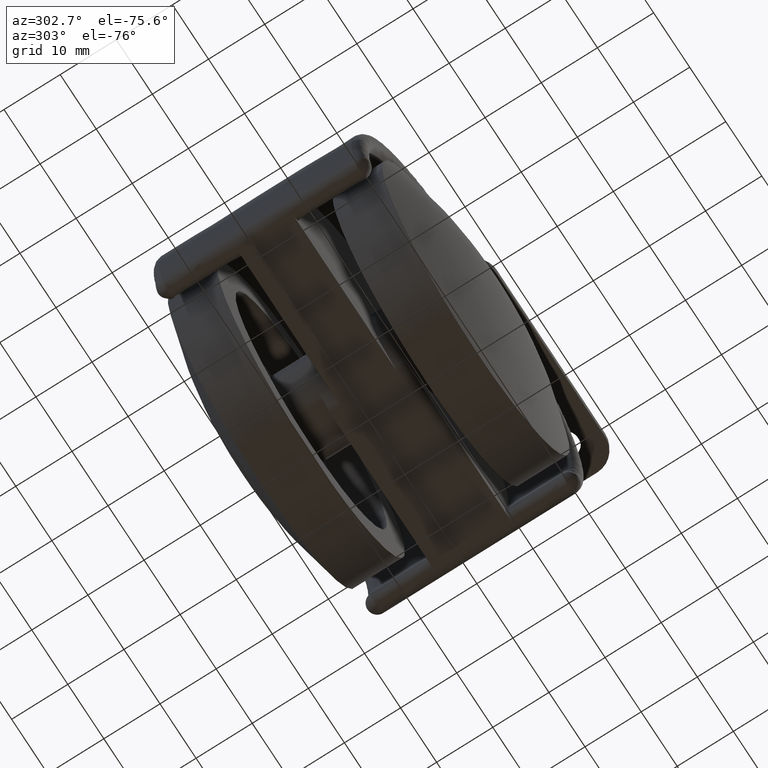
[diagram: clean part render]
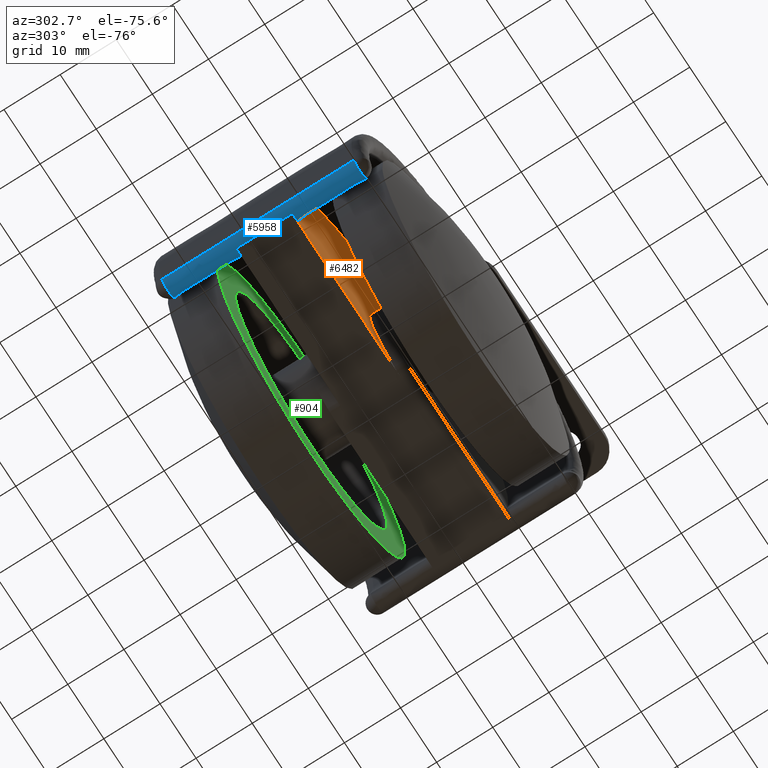
[diagram: same view with three faces highlighted in distinct colors, each labeled with its STEP entity id]
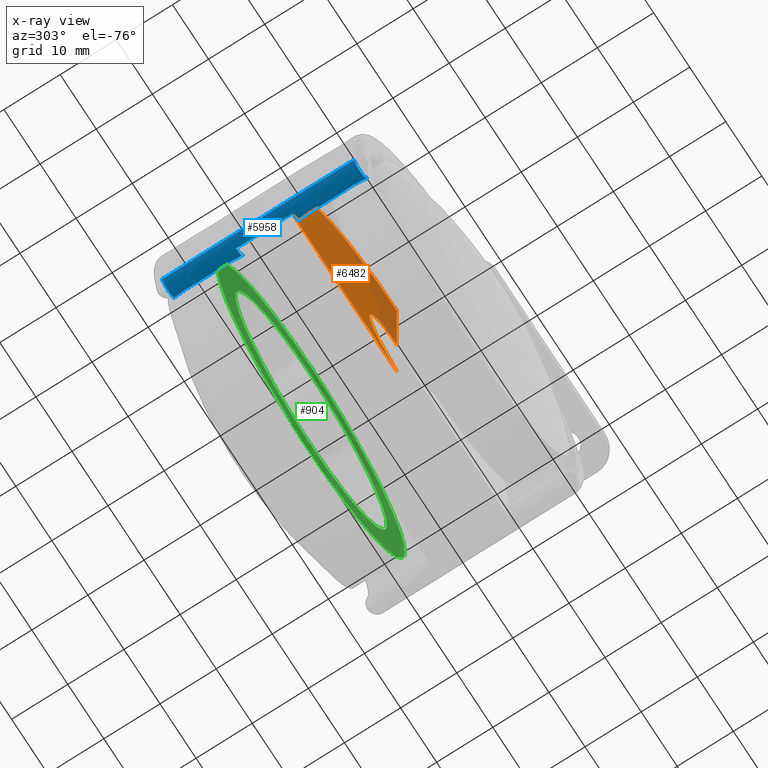
[diagram: x-ray of the same camera — body ghosted, the three highlighted faces saturated]
A machine part, auxiliary view with three faces highlighted in distinct colors.
The next image is the same camera in x-ray (body ghosted, the three faces saturated) — at least one of them is partly hidden behind the body in this view.
Their STEP definitions:

[orange] entity #6482 — the highlighted face is a freeform B-spline surface patch.
#5896=CARTESIAN_POINT('',(-27.269766013083149,-5.0,-6.352941176470590));
#5897=VERTEX_POINT('',#5896);
#5934=CARTESIAN_POINT('',(-28.974126388900849,-5.0,-8.500000000000000));
#5935=VERTEX_POINT('',#5934);
#5941=CARTESIAN_POINT('',(-27.269766013083149,-5.0,-6.352941176470590));
#5942=CARTESIAN_POINT('',(-27.078003873996050,-5.0,-7.176073095658111));
#5943=CARTESIAN_POINT('',(-27.603478195312050,-5.0,-7.838036547829054));
#5944=CARTESIAN_POINT('',(-28.128952516628054,-5.0,-8.500000000000000));
#5945=CARTESIAN_POINT('',(-28.974126388900849,-5.0,-8.500000000000000));
#5953=(BOUNDED_CURVE()B_SPLINE_CURVE(2,(#5941,#5942,#5943,#5944,#5945),.UNSPECIFIED.,.F.,.U.)B_SPLINE_CURVE_WITH_KNOTS((3,2,3),(0.0,0.500000000000000,1.0),.UNSPECIFIED.)CURVE()GEOMETRIC_REPRESENTATION_ITEM()RATIONAL_B_SPLINE_CURVE((1.0,0.900481862723517,1.0,0.900481862723517,1.0))REPRESENTATION_ITEM(''));
#5954=EDGE_CURVE('',#5897,#5935,#5953,.T.);
#6322=CARTESIAN_POINT('',(0.0,-5.0,28.0));
#6323=VERTEX_POINT('',#6322);
#6329=CARTESIAN_POINT('',(0.0,-5.0,7.500000000000000));
#6330=VERTEX_POINT('',#6329);
#6331=CARTESIAN_POINT('',(0.0,-5.0,7.500000000000000));
#6332=CARTESIAN_POINT('',(0.0,-5.0,28.0));
#6333=QUASI_UNIFORM_CURVE('',1,(#6331,#6332),.UNSPECIFIED.,.F.,.U.);
#6334=EDGE_CURVE('',#6330,#6323,#6333,.T.);
#6359=CARTESIAN_POINT('',(-0.661764705882354,-5.0,-8.147058823529410));
#6360=VERTEX_POINT('',#6359);
#6366=CARTESIAN_POINT('',(0.750000000000000,-5.0,-8.500000000000000));
#6367=VERTEX_POINT('',#6366);
#6368=CARTESIAN_POINT('',(-0.661764705882354,-5.0,-8.147058823529410));
#6369=CARTESIAN_POINT('',(-5.421011E-016,-5.0,-8.500000000000000));
#6370=CARTESIAN_POINT('',(0.750000000000000,-5.0,-8.500000000000000));
#6378=(BOUNDED_CURVE()B_SPLINE_CURVE(2,(#6368,#6369,#6370),.UNSPECIFIED.,.F.,.U.)CURVE()GEOMETRIC_REPRESENTATION_ITEM()QUASI_UNIFORM_CURVE()RATIONAL_B_SPLINE_CURVE((1.0,0.970142500145332,1.0))REPRESENTATION_ITEM(''));
#6379=EDGE_CURVE('',#6360,#6367,#6378,.T.);
#6395=CARTESIAN_POINT('',(-3.529411764705881,-5.0,-6.617647058823529));
#6396=VERTEX_POINT('',#6395);
#6402=CARTESIAN_POINT('',(-0.661764705882354,-5.0,-8.147058823529410));
#6403=CARTESIAN_POINT('',(-3.529411764705881,-5.0,-6.617647058823529));
#6404=QUASI_UNIFORM_CURVE('',1,(#6402,#6403),.UNSPECIFIED.,.F.,.U.);
#6405=EDGE_CURVE('',#6360,#6396,#6404,.T.);
#6431=CARTESIAN_POINT('',(0.0,-5.0,7.500000000000000));
#6432=CARTESIAN_POINT('',(-5.855823048033113,-5.0,7.500000000000001));
#6433=CARTESIAN_POINT('',(-7.276068751089989,-5.0,1.819017187772499));
#6434=CARTESIAN_POINT('',(-8.696314454146867,-5.0,-3.861965624455003));
#6435=CARTESIAN_POINT('',(-3.529411764705885,-5.0,-6.617647058823528));
#6443=(BOUNDED_CURVE()B_SPLINE_CURVE(2,(#6431,#6432,#6433,#6434,#6435),.UNSPECIFIED.,.F.,.U.)B_SPLINE_CURVE_WITH_KNOTS((3,2,3),(0.0,0.500000000000000,1.0),.UNSPECIFIED.)CURVE()GEOMETRIC_REPRESENTATION_ITEM()RATIONAL_B_SPLINE_CURVE((1.0,0.788205438016109,1.0,0.788205438016109,1.0))REPRESENTATION_ITEM(''));
#6444=EDGE_CURVE('',#6330,#6396,#6443,.T.);
#6450=CARTESIAN_POINT('',(-30.458847002472979,-5.0,29.823174929255920));
#6451=CARTESIAN_POINT('',(2.234720879326533,-5.0,29.823174929255920));
#6452=CARTESIAN_POINT('',(-30.458847002472979,-5.0,-10.323175908262209));
#6453=CARTESIAN_POINT('',(2.234720879326533,-5.0,-10.323175908262209));
#6454=B_SPLINE_SURFACE_WITH_KNOTS('',1,1,((#6450,#6452),(#6451,#6453)),.UNSPECIFIED.,.F.,.F.,.U.,(2,2),(2,2),(0.0,32.693567881799517),(0.0,40.146350837518128),.UNSPECIFIED.);
#6455=ORIENTED_EDGE('',*,*,#6379,.F.);
#6456=ORIENTED_EDGE('',*,*,#6405,.T.);
#6457=ORIENTED_EDGE('',*,*,#6444,.F.);
#6458=ORIENTED_EDGE('',*,*,#6334,.T.);
#6459=CARTESIAN_POINT('',(0.0,-5.0,28.0));
#6460=CARTESIAN_POINT('',(-13.522781956364717,-5.0,27.999999999999993));
#6461=CARTESIAN_POINT('',(-21.930371097420771,-5.0,17.408584765264859));
#6462=CARTESIAN_POINT('',(-30.337960238476821,-5.0,6.817169530529719));
#6463=CARTESIAN_POINT('',(-27.269766013083139,-5.0,-6.352941176470587));
#6471=(BOUNDED_CURVE()B_SPLINE_CURVE(2,(#6459,#6460,#6461,#6462,#6463),.UNSPECIFIED.,.F.,.U.)B_SPLINE_CURVE_WITH_KNOTS((3,2,3),(0.0,0.500000000000000,1.0),.UNSPECIFIED.)CURVE()GEOMETRIC_REPRESENTATION_ITEM()RATIONAL_B_SPLINE_CURVE((1.0,0.900481862723517,1.0,0.900481862723517,1.0))REPRESENTATION_ITEM(''));
#6472=EDGE_CURVE('',#6323,#5897,#6471,.T.);
#6473=ORIENTED_EDGE('',*,*,#6472,.T.);
#6474=ORIENTED_EDGE('',*,*,#5954,.T.);
#6475=CARTESIAN_POINT('',(-28.974126388900849,-5.0,-8.500000000000000));
#6476=CARTESIAN_POINT('',(0.750000000000000,-5.0,-8.500000000000000));
#6477=QUASI_UNIFORM_CURVE('',1,(#6475,#6476),.UNSPECIFIED.,.F.,.U.);
#6478=EDGE_CURVE('',#5935,#6367,#6477,.T.);
#6479=ORIENTED_EDGE('',*,*,#6478,.T.);
#6480=EDGE_LOOP('',(#6455,#6456,#6457,#6458,#6473,#6474,#6479));
#6481=FACE_OUTER_BOUND('',#6480,.T.);
#6482=ADVANCED_FACE('',(#6481),#6454,.F.);

[blue] entity #5958 — the highlighted face is a freeform B-spline surface patch.
#5478=CARTESIAN_POINT('',(-27.269766013083149,17.100000000000001,-6.352941176470590));
#5479=VERTEX_POINT('',#5478);
#5497=CARTESIAN_POINT('',(-30.678486764718549,17.100000000000001,-7.147058823529410));
#5498=VERTEX_POINT('',#5497);
#5567=CARTESIAN_POINT('',(-30.678486764718549,17.100000000000001,-7.147058823529409));
#5568=CARTESIAN_POINT('',(-30.281427941189133,17.099999999999998,-8.851419199347106));
#5569=CARTESIAN_POINT('',(-28.577067565371440,17.100000000000001,-8.454360375817698));
#5570=CARTESIAN_POINT('',(-26.872707189553747,17.099999999999998,-8.057301552288289));
#5571=CARTESIAN_POINT('',(-27.269766013083149,17.100000000000001,-6.352941176470591));
#5579=(BOUNDED_CURVE()B_SPLINE_CURVE(2,(#5567,#5568,#5569,#5570,#5571),.UNSPECIFIED.,.F.,.U.)B_SPLINE_CURVE_WITH_KNOTS((3,2,3),(0.0,0.500000000000000,1.0),.UNSPECIFIED.)CURVE()GEOMETRIC_REPRESENTATION_ITEM()RATIONAL_B_SPLINE_CURVE((1.0,0.707106781186547,1.0,0.707106781186547,1.0))REPRESENTATION_ITEM(''));
#5580=EDGE_CURVE('',#5498,#5479,#5579,.T.);
#5617=CARTESIAN_POINT('',(-27.269766013083149,-17.100000000000001,-6.352941176470590));
#5618=VERTEX_POINT('',#5617);
#5619=CARTESIAN_POINT('',(-30.678486764718549,-17.100000000000001,-7.147058823529410));
#5620=VERTEX_POINT('',#5619);
#5636=CARTESIAN_POINT('',(-27.269766013083149,-17.100000000000001,-6.352941176470590));
#5637=CARTESIAN_POINT('',(-27.040523994434324,-17.099999999999998,-7.336954098245069));
#5638=CARTESIAN_POINT('',(-27.778083173018771,-17.100000000000001,-8.027489970897014));
#5639=CARTESIAN_POINT('',(-28.515642351603208,-17.099999999999998,-8.718025843548958));
#5640=CARTESIAN_POINT('',(-29.482443548836471,-17.100000000000001,-8.424548794426423));
#5641=CARTESIAN_POINT('',(-30.449244746069724,-17.099999999999998,-8.131071745303888));
#5642=CARTESIAN_POINT('',(-30.678486764718549,-17.100000000000001,-7.147058823529410));
#5650=(BOUNDED_CURVE()B_SPLINE_CURVE(2,(#5636,#5637,#5638,#5639,#5640,#5641,#5642),.UNSPECIFIED.,.F.,.U.)B_SPLINE_CURVE_WITH_KNOTS((3,2,2,3),(0.0,0.333333333333333,0.666666666666667,1.0),.UNSPECIFIED.)CURVE()GEOMETRIC_REPRESENTATION_ITEM()RATIONAL_B_SPLINE_CURVE((1.0,0.866025403784439,1.0,0.866025403784439,1.0,0.866025403784439,1.0))REPRESENTATION_ITEM(''));
#5651=EDGE_CURVE('',#5618,#5620,#5650,.T.);
#5878=CARTESIAN_POINT('',(-30.688296511283820,-17.955000000000009,-7.102307807931582));
#5879=CARTESIAN_POINT('',(-30.688296511283820,17.976375000000001,-7.102307807931582));
#5880=CARTESIAN_POINT('',(-30.317041545304207,-17.955000000000009,-8.908666214249186));
#5881=CARTESIAN_POINT('',(-30.317041545304207,17.976375000000004,-8.908666214249186));
#5882=CARTESIAN_POINT('',(-28.532588674057731,-17.955000000000009,-8.443382545785536));
#5883=CARTESIAN_POINT('',(-28.532588674057731,17.976375000000001,-8.443382545785536));
#5884=CARTESIAN_POINT('',(-26.748135802811248,-17.955000000000009,-7.978098877321886));
#5885=CARTESIAN_POINT('',(-26.748135802811248,17.976375000000004,-7.978098877321886));
#5886=CARTESIAN_POINT('',(-27.306172863565159,-17.955000000000009,-6.220442602430822));
#5887=CARTESIAN_POINT('',(-27.306172863565159,17.976375000000001,-6.220442602430822));
#5895=(BOUNDED_SURFACE()B_SPLINE_SURFACE(1,2,((#5878,#5880,#5882,#5884,#5886),(#5879,#5881,#5883,#5885,#5887)),.UNSPECIFIED.,.F.,.F.,.U.)B_SPLINE_SURFACE_WITH_KNOTS((2,2),(3,2,3),(0.0,35.931375000000010),(0.0,3.007437341767846,6.014874683535691),.UNSPECIFIED.)GEOMETRIC_REPRESENTATION_ITEM()RATIONAL_B_SPLINE_SURFACE(((1.0,0.688354575693754,1.0,0.688354575693754,1.0),(1.0,0.688354575693754,1.0,0.688354575693754,1.0)))REPRESENTATION_ITEM('')SURFACE());
#5896=CARTESIAN_POINT('',(-27.269766013083149,-5.0,-6.352941176470590));
#5897=VERTEX_POINT('',#5896);
#5898=CARTESIAN_POINT('',(-27.269766013083149,-17.100000000000001,-6.352941176470590));
#5899=CARTESIAN_POINT('',(-27.269766013083149,-5.0,-6.352941176470590));
#5900=QUASI_UNIFORM_CURVE('',1,(#5898,#5899),.UNSPECIFIED.,.F.,.U.);
#5901=EDGE_CURVE('',#5618,#5897,#5900,.T.);
#5902=ORIENTED_EDGE('',*,*,#5901,.F.);
#5903=ORIENTED_EDGE('',*,*,#5651,.T.);
#5904=CARTESIAN_POINT('',(-30.678486764718549,17.100000000000001,-7.147058823529410));
#5905=CARTESIAN_POINT('',(-30.678486764718549,-17.100000000000001,-7.147058823529410));
#5906=QUASI_UNIFORM_CURVE('',1,(#5904,#5905),.UNSPECIFIED.,.F.,.U.);
#5907=EDGE_CURVE('',#5498,#5620,#5906,.T.);
#5908=ORIENTED_EDGE('',*,*,#5907,.F.);
#5909=ORIENTED_EDGE('',*,*,#5580,.T.);
#5910=CARTESIAN_POINT('',(-27.269766013083149,5.0,-6.352941176470590));
#5911=VERTEX_POINT('',#5910);
#5912=CARTESIAN_POINT('',(-27.269766013083149,5.0,-6.352941176470590));
#5913=CARTESIAN_POINT('',(-27.269766013083149,17.100000000000001,-6.352941176470590));
#5914=QUASI_UNIFORM_CURVE('',1,(#5912,#5913),.UNSPECIFIED.,.F.,.U.);
#5915=EDGE_CURVE('',#5911,#5479,#5914,.T.);
#5916=ORIENTED_EDGE('',*,*,#5915,.F.);
#5917=CARTESIAN_POINT('',(-28.974126388900849,5.0,-8.500000000000000));
#5918=VERTEX_POINT('',#5917);
#5919=CARTESIAN_POINT('',(-28.974126388900849,5.0,-8.500000000000000));
#5920=CARTESIAN_POINT('',(-28.128952516628054,5.0,-8.500000000000000));
#5921=CARTESIAN_POINT('',(-27.603478195312050,5.0,-7.838036547829054));
#5922=CARTESIAN_POINT('',(-27.078003873996050,5.0,-7.176073095658109));
#5923=CARTESIAN_POINT('',(-27.269766013083149,5.0,-6.352941176470590));
#5931=(BOUNDED_CURVE()B_SPLINE_CURVE(2,(#5919,#5920,#5921,#5922,#5923),.UNSPECIFIED.,.F.,.U.)B_SPLINE_CURVE_WITH_KNOTS((3,2,3),(0.0,0.500000000000000,1.0),.UNSPECIFIED.)CURVE()GEOMETRIC_REPRESENTATION_ITEM()RATIONAL_B_SPLINE_CURVE((1.0,0.900481862723517,1.0,0.900481862723517,1.0))REPRESENTATION_ITEM(''));
#5932=EDGE_CURVE('',#5918,#5911,#5931,.T.);
#5933=ORIENTED_EDGE('',*,*,#5932,.F.);
#5934=CARTESIAN_POINT('',(-28.974126388900849,-5.0,-8.500000000000000));
#5935=VERTEX_POINT('',#5934);
#5936=CARTESIAN_POINT('',(-28.974126388900849,-5.0,-8.500000000000000));
#5937=CARTESIAN_POINT('',(-28.974126388900849,5.0,-8.500000000000000));
#5938=QUASI_UNIFORM_CURVE('',1,(#5936,#5937),.UNSPECIFIED.,.F.,.U.);
#5939=EDGE_CURVE('',#5935,#5918,#5938,.T.);
#5940=ORIENTED_EDGE('',*,*,#5939,.F.);
#5941=CARTESIAN_POINT('',(-27.269766013083149,-5.0,-6.352941176470590));
#5942=CARTESIAN_POINT('',(-27.078003873996050,-5.0,-7.176073095658111));
#5943=CARTESIAN_POINT('',(-27.603478195312050,-5.0,-7.838036547829054));
#5944=CARTESIAN_POINT('',(-28.128952516628054,-5.0,-8.500000000000000));
#5945=CARTESIAN_POINT('',(-28.974126388900849,-5.0,-8.500000000000000));
#5953=(BOUNDED_CURVE()B_SPLINE_CURVE(2,(#5941,#5942,#5943,#5944,#5945),.UNSPECIFIED.,.F.,.U.)B_SPLINE_CURVE_WITH_KNOTS((3,2,3),(0.0,0.500000000000000,1.0),.UNSPECIFIED.)CURVE()GEOMETRIC_REPRESENTATION_ITEM()RATIONAL_B_SPLINE_CURVE((1.0,0.900481862723517,1.0,0.900481862723517,1.0))REPRESENTATION_ITEM(''));
#5954=EDGE_CURVE('',#5897,#5935,#5953,.T.);
#5955=ORIENTED_EDGE('',*,*,#5954,.F.);
#5956=EDGE_LOOP('',(#5902,#5903,#5908,#5909,#5916,#5933,#5940,#5955));
#5957=FACE_OUTER_BOUND('',#5956,.T.);
#5958=ADVANCED_FACE('',(#5957),#5895,.T.);

[green] entity #904 — the highlighted face is a freeform B-spline surface patch.
#286=CARTESIAN_POINT('',(-25.951505802817628,-10.250000000000000,-1.587244960940237));
#287=VERTEX_POINT('',#286);
#293=CARTESIAN_POINT('',(0.0,-10.250000000000000,-26.0));
#294=VERTEX_POINT('',#293);
#295=CARTESIAN_POINT('',(0.0,-10.250000000000000,-26.0));
#296=CARTESIAN_POINT('',(-24.458373854610496,-10.249999999999998,-26.000000000000007));
#297=CARTESIAN_POINT('',(-25.951505802817632,-10.249999999999998,-1.587244960940237));
#305=(BOUNDED_CURVE()B_SPLINE_CURVE(2,(#295,#296,#297),.UNSPECIFIED.,.F.,.U.)B_SPLINE_CURVE_WITH_KNOTS((3,3),(0.500000000000000,0.739333075717101),.UNSPECIFIED.)CURVE()GEOMETRIC_REPRESENTATION_ITEM()RATIONAL_B_SPLINE_CURVE((1.0,0.719603860338778,0.976072284872133))REPRESENTATION_ITEM(''));
#306=EDGE_CURVE('',#294,#287,#305,.T.);
#308=CARTESIAN_POINT('',(25.818250679703731,-10.250000000000000,3.068864910571040));
#309=VERTEX_POINT('',#308);
#310=CARTESIAN_POINT('',(25.818250679703727,-10.250000000000000,3.068864910571040));
#311=CARTESIAN_POINT('',(26.000000000000004,-10.249999999999998,1.539814382543767));
#312=CARTESIAN_POINT('',(26.0,-10.250000000000000,0.0));
#313=CARTESIAN_POINT('',(26.000000000000007,-10.250000000000000,-26.000000000000007));
#314=CARTESIAN_POINT('',(0.0,-10.250000000000000,-26.0));
#322=(BOUNDED_CURVE()B_SPLINE_CURVE(2,(#310,#311,#312,#313,#314),.UNSPECIFIED.,.F.,.U.)B_SPLINE_CURVE_WITH_KNOTS((3,2,3),(0.229562638409770,0.250000000000000,0.500000000000000),.UNSPECIFIED.)CURVE()GEOMETRIC_REPRESENTATION_ITEM()RATIONAL_B_SPLINE_CURVE((0.956027077387376,0.976056141519133,1.0,0.707106781186547,1.0))REPRESENTATION_ITEM(''));
#323=EDGE_CURVE('',#309,#294,#322,.T.);
#367=CARTESIAN_POINT('',(0.0,-10.250000000000000,26.0));
#368=VERTEX_POINT('',#367);
#369=CARTESIAN_POINT('',(0.0,-10.250000000000000,26.0));
#370=CARTESIAN_POINT('',(23.092560364421743,-10.250000000000000,26.0));
#371=CARTESIAN_POINT('',(25.818250679703727,-10.250000000000000,3.068864910571040));
#379=(BOUNDED_CURVE()B_SPLINE_CURVE(2,(#369,#370,#371),.UNSPECIFIED.,.F.,.U.)B_SPLINE_CURVE_WITH_KNOTS((3,3),(0.0,0.229562638409770),.UNSPECIFIED.)CURVE()GEOMETRIC_REPRESENTATION_ITEM()RATIONAL_B_SPLINE_CURVE((1.0,0.731050639667415,0.956027077387376))REPRESENTATION_ITEM(''));
#380=EDGE_CURVE('',#368,#309,#379,.T.);
#382=CARTESIAN_POINT('',(-25.951505802817632,-10.249999999999998,-1.587244960940237));
#383=CARTESIAN_POINT('',(-26.000000000000004,-10.250000000000004,-0.794363288353669));
#384=CARTESIAN_POINT('',(-26.0,-10.250000000000000,0.0));
#385=CARTESIAN_POINT('',(-26.000000000000007,-10.250000000000000,26.000000000000007));
#386=CARTESIAN_POINT('',(0.0,-10.250000000000000,26.0));
#394=(BOUNDED_CURVE()B_SPLINE_CURVE(2,(#382,#383,#384,#385,#386),.UNSPECIFIED.,.F.,.U.)B_SPLINE_CURVE_WITH_KNOTS((3,2,3),(0.739333075717101,0.750000000000000,1.0),.UNSPECIFIED.)CURVE()GEOMETRIC_REPRESENTATION_ITEM()RATIONAL_B_SPLINE_CURVE((0.976072284872133,0.987502920847769,1.0,0.707106781186547,1.0))REPRESENTATION_ITEM(''));
#395=EDGE_CURVE('',#287,#368,#394,.T.);
#643=CARTESIAN_POINT('',(20.853201422381630,-10.250000000000000,2.478707412633857));
#644=VERTEX_POINT('',#643);
#650=CARTESIAN_POINT('',(0.0,-10.250000000000000,-21.0));
#651=VERTEX_POINT('',#650);
#652=CARTESIAN_POINT('',(20.853201422381634,-10.250000000000000,2.478707412633857));
#653=CARTESIAN_POINT('',(21.000000000000004,-10.250000000000007,1.243700694243165));
#654=CARTESIAN_POINT('',(21.0,-10.250000000000000,0.0));
#655=CARTESIAN_POINT('',(21.000000000000007,-10.250000000000000,-21.000000000000007));
#656=CARTESIAN_POINT('',(0.0,-10.250000000000000,-21.0));
#664=(BOUNDED_CURVE()B_SPLINE_CURVE(2,(#652,#653,#654,#655,#656),.UNSPECIFIED.,.F.,.U.)B_SPLINE_CURVE_WITH_KNOTS((3,2,3),(0.229562566839412,0.250000000000000,0.500000000000000),.UNSPECIFIED.)CURVE()GEOMETRIC_REPRESENTATION_ITEM()RATIONAL_B_SPLINE_CURVE((0.956026937106371,0.976056057669242,1.0,0.707106781186547,1.0))REPRESENTATION_ITEM(''));
#665=EDGE_CURVE('',#644,#651,#664,.T.);
#667=CARTESIAN_POINT('',(-20.960832145505560,-10.250000000000000,-1.281996789165496));
#668=VERTEX_POINT('',#667);
#669=CARTESIAN_POINT('',(0.0,-10.250000000000000,-21.0));
#670=CARTESIAN_POINT('',(-19.754848688870240,-10.250000000000000,-21.000000000000007));
#671=CARTESIAN_POINT('',(-20.960832145505563,-10.249999999999998,-1.281996789165495));
#679=(BOUNDED_CURVE()B_SPLINE_CURVE(2,(#669,#670,#671),.UNSPECIFIED.,.F.,.U.)B_SPLINE_CURVE_WITH_KNOTS((3,3),(0.500000000000000,0.739333147797076),.UNSPECIFIED.)CURVE()GEOMETRIC_REPRESENTATION_ITEM()RATIONAL_B_SPLINE_CURVE((1.0,0.719603775891835,0.976072439353441))REPRESENTATION_ITEM(''));
#680=EDGE_CURVE('',#651,#668,#679,.T.);
#754=CARTESIAN_POINT('',(0.0,-10.250000000000000,21.0));
#755=VERTEX_POINT('',#754);
#756=CARTESIAN_POINT('',(-20.960832145505563,-10.249999999999998,-1.281996789165495));
#757=CARTESIAN_POINT('',(-20.999999999999996,-10.249999999999996,-0.641596727136566));
#758=CARTESIAN_POINT('',(-21.0,-10.250000000000000,0.0));
#759=CARTESIAN_POINT('',(-21.000000000000007,-10.250000000000000,21.000000000000007));
#760=CARTESIAN_POINT('',(0.0,-10.250000000000000,21.0));
#768=(BOUNDED_CURVE()B_SPLINE_CURVE(2,(#756,#757,#758,#759,#760),.UNSPECIFIED.,.F.,.U.)B_SPLINE_CURVE_WITH_KNOTS((3,2,3),(0.739333147797076,0.750000000000000,1.0),.UNSPECIFIED.)CURVE()GEOMETRIC_REPRESENTATION_ITEM()RATIONAL_B_SPLINE_CURVE((0.976072439353441,0.987503005294712,1.0,0.707106781186547,1.0))REPRESENTATION_ITEM(''));
#769=EDGE_CURVE('',#668,#755,#768,.T.);
#771=CARTESIAN_POINT('',(0.0,-10.250000000000000,21.0));
#772=CARTESIAN_POINT('',(18.651675416953815,-10.250000000000000,21.000000000000004));
#773=CARTESIAN_POINT('',(20.853201422381634,-10.250000000000000,2.478707412633857));
#781=(BOUNDED_CURVE()B_SPLINE_CURVE(2,(#771,#772,#773),.UNSPECIFIED.,.F.,.U.)B_SPLINE_CURVE_WITH_KNOTS((3,3),(0.0,0.229562566839412),.UNSPECIFIED.)CURVE()GEOMETRIC_REPRESENTATION_ITEM()RATIONAL_B_SPLINE_CURVE((1.0,0.731050723517305,0.956026937106371))REPRESENTATION_ITEM(''));
#782=EDGE_CURVE('',#755,#644,#781,.T.);
#887=CARTESIAN_POINT('',(-28.596768058601580,-10.250000000000000,28.597399899213912));
#888=CARTESIAN_POINT('',(-28.596768058601580,-10.250000000000000,-28.597401293962601));
#889=CARTESIAN_POINT('',(28.596927059951980,-10.250000000000000,28.597399899213912));
#890=CARTESIAN_POINT('',(28.596927059951980,-10.250000000000000,-28.597401293962601));
#891=B_SPLINE_SURFACE_WITH_KNOTS('',1,1,((#887,#889),(#888,#890)),.UNSPECIFIED.,.F.,.F.,.U.,(2,2),(2,2),(0.0,57.194801193176502),(0.0,57.193695118553563),.UNSPECIFIED.);
#892=ORIENTED_EDGE('',*,*,#380,.T.);
#893=ORIENTED_EDGE('',*,*,#323,.T.);
#894=ORIENTED_EDGE('',*,*,#306,.T.);
#895=ORIENTED_EDGE('',*,*,#395,.T.);
#896=EDGE_LOOP('',(#892,#893,#894,#895));
#897=FACE_OUTER_BOUND('',#896,.T.);
#898=ORIENTED_EDGE('',*,*,#680,.F.);
#899=ORIENTED_EDGE('',*,*,#665,.F.);
#900=ORIENTED_EDGE('',*,*,#782,.F.);
#901=ORIENTED_EDGE('',*,*,#769,.F.);
#902=EDGE_LOOP('',(#898,#899,#900,#901));
#903=FACE_BOUND('',#902,.T.);
#904=ADVANCED_FACE('',(#897,#903),#891,.F.);